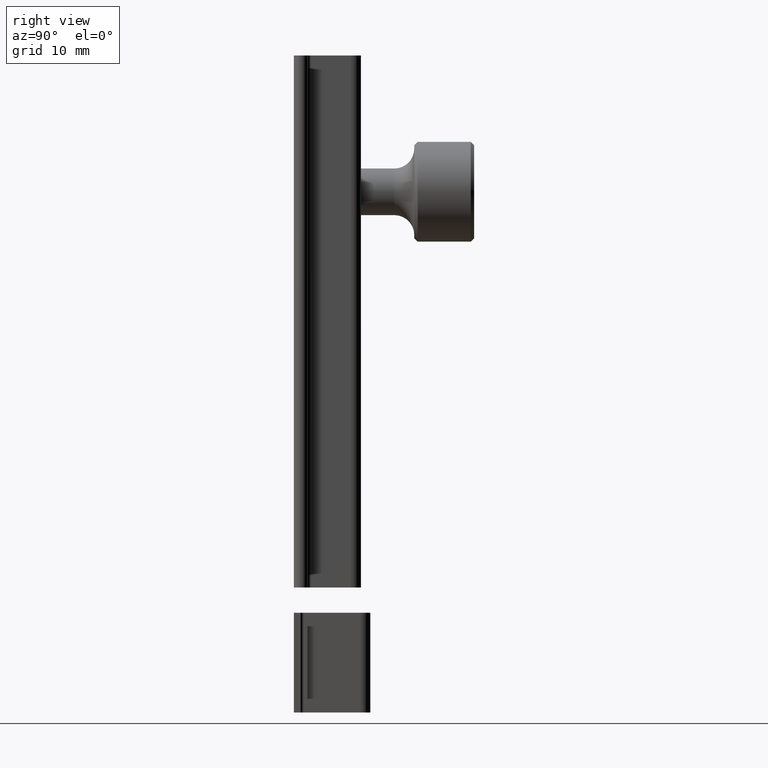
[diagram: clean part render]
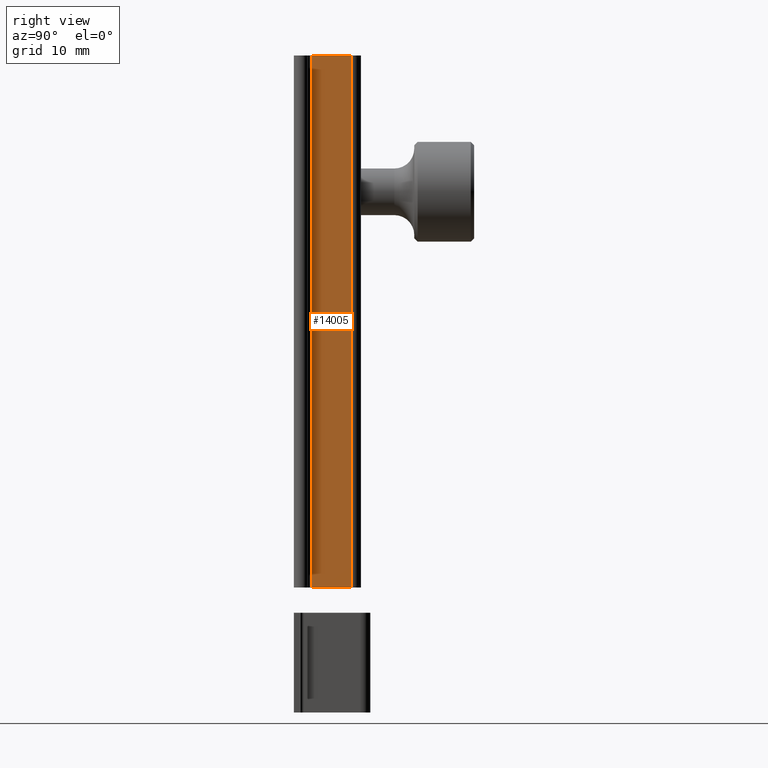
[diagram: same view with one face highlighted and labeled with its STEP entity id]
A machine part, right view. The second image highlights one B-rep face of the part: STEP entity #14005.
In plain terms, the highlighted planar face has unit normal (1, -0, 0).
Its self-contained STEP definition (entity closure, byte-faithful):
#2489 = CARTESIAN_POINT ( 'NONE',  ( 10.00000000000000178, 7.500000000000000000, 40.00000000000000000 ) ) ;
#2807 = VERTEX_POINT ( 'NONE', #5499 ) ;
#2933 = VECTOR ( 'NONE', #14889, 1000.000000000000000 ) ;
#3253 = VERTEX_POINT ( 'NONE', #14894 ) ;
#3351 = VECTOR ( 'NONE', #11181, 1000.000000000000000 ) ;
#3742 = EDGE_CURVE ( 'NONE', #6209, #2807, #13624, .T. ) ;
#5307 = DIRECTION ( 'NONE',  ( 1.000000000000000000, -2.168404344971008868E-16, 0.000000000000000000 ) ) ;
#5499 = CARTESIAN_POINT ( 'NONE',  ( 10.00000000000000178, 7.500000000000000000, -40.00000000000000000 ) ) ;
#5628 = EDGE_CURVE ( 'NONE', #3253, #12324, #12485, .T. ) ;
#6046 = CARTESIAN_POINT ( 'NONE',  ( 10.00000000000000178, 8.000000000000000000, -40.00000000000000000 ) ) ;
#6209 = VERTEX_POINT ( 'NONE', #8898 ) ;
#6629 = DIRECTION ( 'NONE',  ( 2.168404344971008868E-16, 1.000000000000000000, 0.000000000000000000 ) ) ;
#7362 = CARTESIAN_POINT ( 'NONE',  ( 10.00000000000000000, 1.499999999999999778, -40.00000000000000000 ) ) ;
#7833 = CARTESIAN_POINT ( 'NONE',  ( 10.00000000000000178, 8.000000000000000000, 40.00000000000000000 ) ) ;
#8898 = CARTESIAN_POINT ( 'NONE',  ( 10.00000000000000178, 7.500000000000000000, 40.00000000000000000 ) ) ;
#9002 = CARTESIAN_POINT ( 'NONE',  ( 10.00000000000000178, 8.000000000000000000, 40.00000000000000000 ) ) ;
#9477 = VECTOR ( 'NONE', #10216, 1000.000000000000000 ) ;
#9880 = EDGE_CURVE ( 'NONE', #6209, #3253, #15015, .T. ) ;
#9932 = ORIENTED_EDGE ( 'NONE', *, *, #5628, .T. ) ;
#10216 = DIRECTION ( 'NONE',  ( -2.168404344971008868E-16, -1.000000000000000000, 0.000000000000000000 ) ) ;
#10429 = PLANE ( 'NONE',  #15973 ) ;
#11181 = DIRECTION ( 'NONE',  ( -0.000000000000000000, -0.000000000000000000, -1.000000000000000000 ) ) ;
#11301 = VECTOR ( 'NONE', #13024, 1000.000000000000000 ) ;
#12232 = EDGE_CURVE ( 'NONE', #2807, #12324, #12988, .T. ) ;
#12324 = VERTEX_POINT ( 'NONE', #7362 ) ;
#12485 = LINE ( 'NONE', #14363, #11301 ) ;
#12549 = FACE_OUTER_BOUND ( 'NONE', #12855, .T. ) ;
#12855 = EDGE_LOOP ( 'NONE', ( #14460, #14333, #15483, #9932 ) ) ;
#12988 = LINE ( 'NONE', #6046, #2933 ) ;
#13024 = DIRECTION ( 'NONE',  ( -0.000000000000000000, -0.000000000000000000, -1.000000000000000000 ) ) ;
#13624 = LINE ( 'NONE', #2489, #3351 ) ;
#14005 = ADVANCED_FACE ( 'NONE', ( #12549 ), #10429, .T. ) ;
#14333 = ORIENTED_EDGE ( 'NONE', *, *, #3742, .F. ) ;
#14363 = CARTESIAN_POINT ( 'NONE',  ( 10.00000000000000000, 1.499999999999999778, 40.00000000000000000 ) ) ;
#14460 = ORIENTED_EDGE ( 'NONE', *, *, #12232, .F. ) ;
#14889 = DIRECTION ( 'NONE',  ( -2.168404344971008868E-16, -1.000000000000000000, 0.000000000000000000 ) ) ;
#14894 = CARTESIAN_POINT ( 'NONE',  ( 10.00000000000000000, 1.499999999999999778, 40.00000000000000000 ) ) ;
#15015 = LINE ( 'NONE', #9002, #9477 ) ;
#15483 = ORIENTED_EDGE ( 'NONE', *, *, #9880, .T. ) ;
#15973 = AXIS2_PLACEMENT_3D ( 'NONE', #7833, #5307, #6629 ) ;